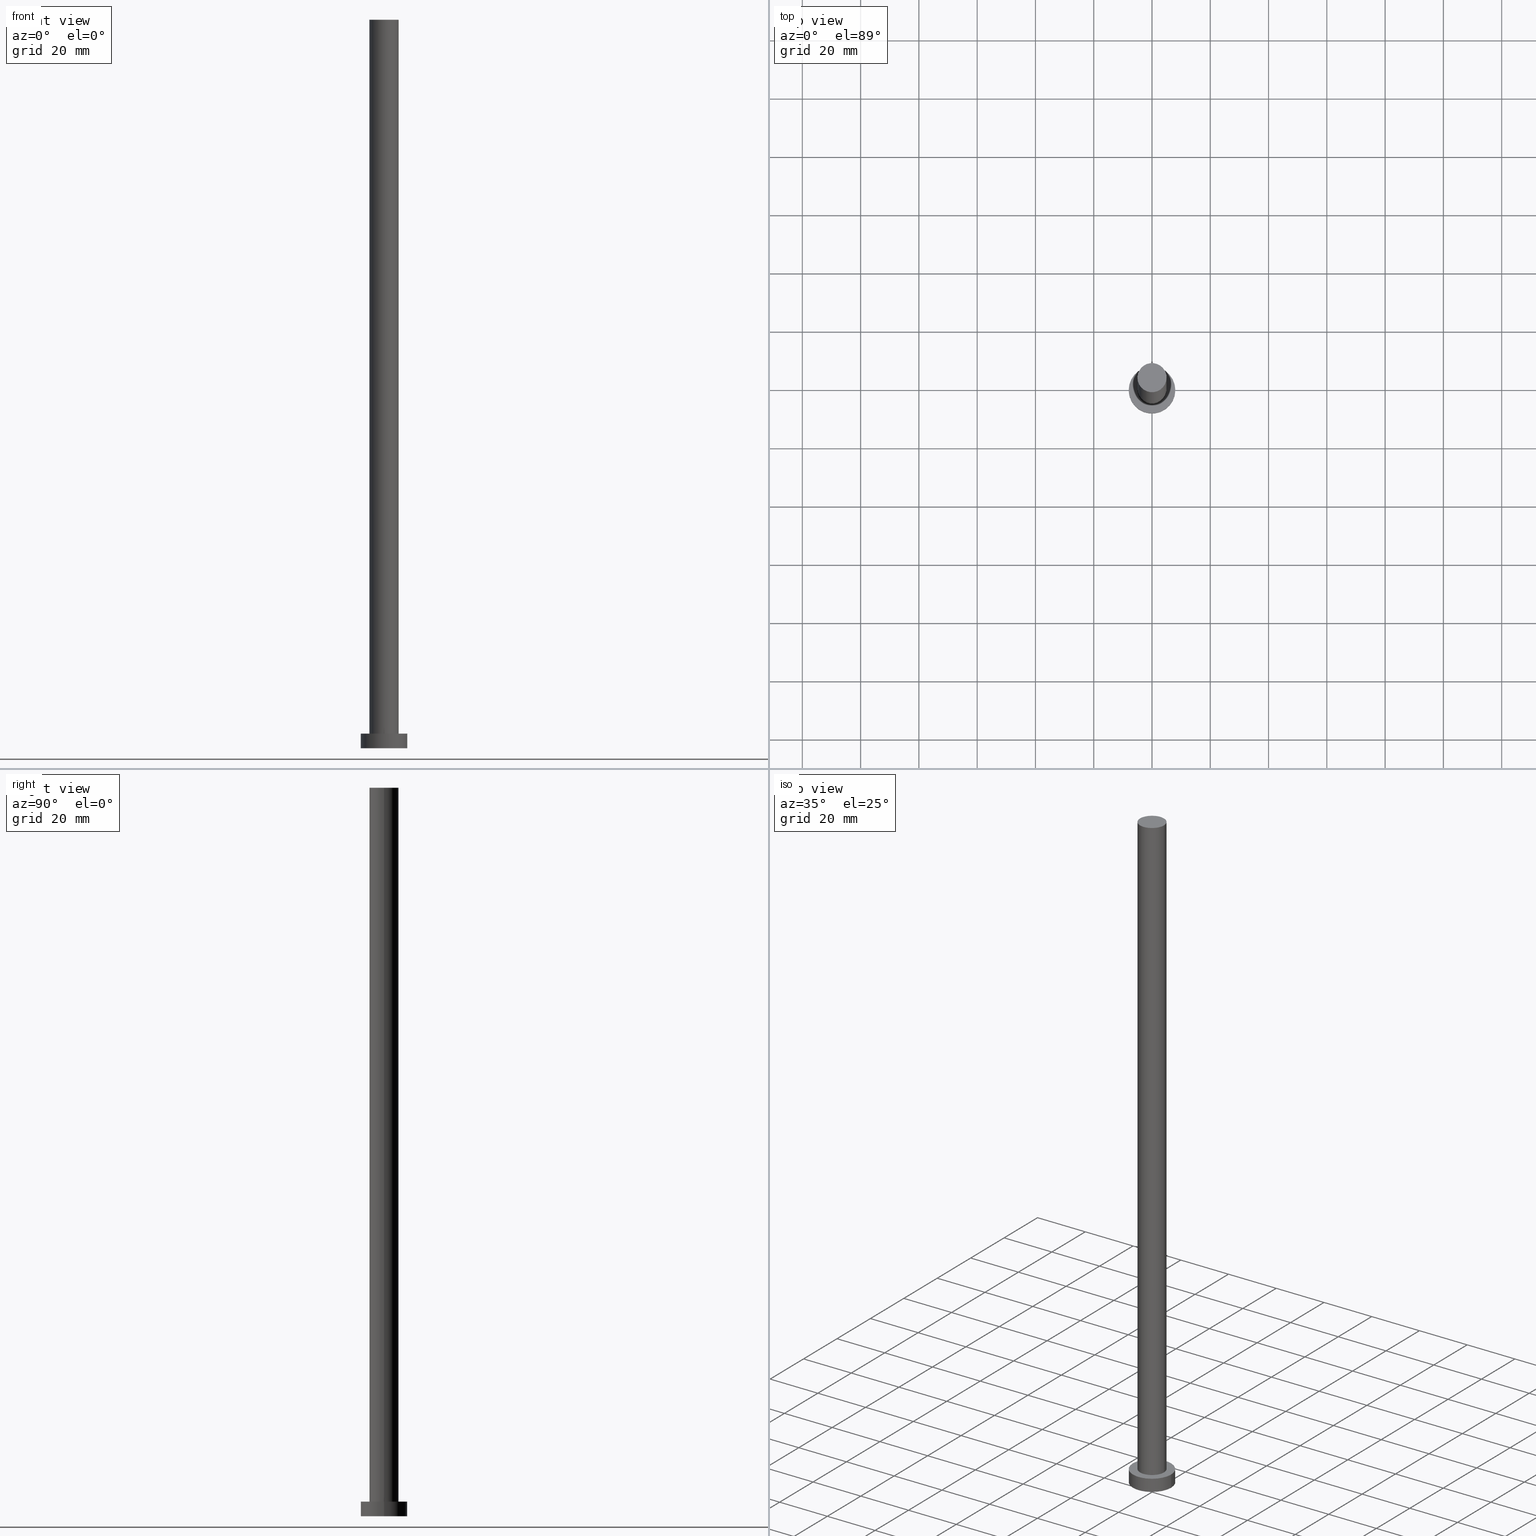
[diagram: canonical four-view strip — front | top / right | iso, engineering-drawing reading convention]
A machine part, canonical four-view strip (front | top / right | iso — engineering-drawing reading convention). The complete STEP part file that produces these views, byte-faithful:
ISO-10303-21;
HEADER;
FILE_DESCRIPTION (( 'STEP AP203' ),
    '1' );
FILE_NAME ('8d9d.STEP',
    '2023-02-13T13:49:41',
    ( '' ),
    ( '' ),
    'SwSTEP 2.0',
    'SolidWorks 2019',
    '' );
FILE_SCHEMA (( 'CONFIG_CONTROL_DESIGN' ));
ENDSEC;

DATA;
#1 = APPROVAL_DATE_TIME ( #140, #123 ) ;
#2 = EDGE_LOOP ( 'NONE', ( #66, #25 ) ) ;
#3 = CC_DESIGN_APPROVAL ( #123, ( #144 ) ) ;
#4 = CARTESIAN_POINT ( 'NONE',  ( 5.000000000000000000, 6.123233995736766282E-16, 5.000000000000000000 ) ) ;
#5 = ORIENTED_EDGE ( 'NONE', *, *, #90, .T. ) ;
#6 = EDGE_CURVE ( 'NONE', #241, #150, #65, .T. ) ;
#7 = VECTOR ( 'NONE', #29, 1000.000000000000000 ) ;
#8 = FACE_OUTER_BOUND ( 'NONE', #206, .T. ) ;
#9 = AXIS2_PLACEMENT_3D ( 'NONE', #173, #119, #99 ) ;
#10 = ORIENTED_EDGE ( 'NONE', *, *, #220, .F. ) ;
#11 = CARTESIAN_POINT ( 'NONE',  ( -8.000000000000000000, 0.000000000000000000, 0.000000000000000000 ) ) ;
#12 = FACE_OUTER_BOUND ( 'NONE', #208, .T. ) ;
#13 = EDGE_CURVE ( 'NONE', #150, #241, #103, .T. ) ;
#14 = CYLINDRICAL_SURFACE ( 'NONE', #197, 5.000000000000000000 ) ;
#15 = PERSON_AND_ORGANIZATION ( #145, #36 ) ;
#16 = LOCAL_TIME ( 14, 49, 41.00000000000000000, #251 ) ;
#17 = PERSON_AND_ORGANIZATION_ROLE ( 'creator' ) ;
#18 = PERSON_AND_ORGANIZATION ( #145, #36 ) ;
#19 = AXIS2_PLACEMENT_3D ( 'NONE', #240, #64, #62 ) ;
#20 = DATE_AND_TIME ( #102, #16 ) ;
#21 = APPROVAL_PERSON_ORGANIZATION ( #15, #123, #252 ) ;
#22 = PERSON_AND_ORGANIZATION ( #145, #36 ) ;
#23 = CC_DESIGN_PERSON_AND_ORGANIZATION_ASSIGNMENT ( #142, #202, ( #234 ) ) ;
#24 = EDGE_CURVE ( 'NONE', #210, #168, #211, .T. ) ;
#25 = ORIENTED_EDGE ( 'NONE', *, *, #243, .F. ) ;
#26 = MANIFOLD_SOLID_BREP ( 'P�idat vysunut�m3', #228 ) ;
#27 = CARTESIAN_POINT ( 'NONE',  ( 0.000000000000000000, 0.000000000000000000, 0.000000000000000000 ) ) ;
#28 = EDGE_LOOP ( 'NONE', ( #189, #244 ) ) ;
#29 = DIRECTION ( 'NONE',  ( -0.000000000000000000, -0.000000000000000000, -1.000000000000000000 ) ) ;
#30 = ORIENTED_EDGE ( 'NONE', *, *, #90, .F. ) ;
#31 = DIRECTION ( 'NONE',  ( 0.000000000000000000, 0.000000000000000000, 1.000000000000000000 ) ) ;
#32 = DIRECTION ( 'NONE',  ( 0.000000000000000000, 0.000000000000000000, 1.000000000000000000 ) ) ;
#33 = AXIS2_PLACEMENT_3D ( 'NONE', #50, #213, #174 ) ;
#34 =( NAMED_UNIT ( * ) PLANE_ANGLE_UNIT ( ) SI_UNIT ( $, .RADIAN. ) );
#35 = DIRECTION ( 'NONE',  ( 1.000000000000000000, 0.000000000000000000, -0.000000000000000000 ) ) ;
#36 = ORGANIZATION ( 'NEUR�EN�', 'NEUR�EN�', '' ) ;
#37 = COORDINATED_UNIVERSAL_TIME_OFFSET ( 1, 0, .AHEAD. ) ;
#38 = AXIS2_PLACEMENT_3D ( 'NONE', #126, #105, #124 ) ;
#39 = SECURITY_CLASSIFICATION_LEVEL ( 'unclassified' ) ;
#40 = AXIS2_PLACEMENT_3D ( 'NONE', #110, #89, #112 ) ;
#41 = VERTEX_POINT ( 'NONE', #4 ) ;
#42 = ORIENTED_EDGE ( 'NONE', *, *, #13, .T. ) ;
#43 = CARTESIAN_POINT ( 'NONE',  ( 0.000000000000000000, 0.000000000000000000, 0.000000000000000000 ) ) ;
#44 = CC_DESIGN_DATE_AND_TIME_ASSIGNMENT ( #178, #218, ( #116 ) ) ;
#45 = FACE_OUTER_BOUND ( 'NONE', #28, .T. ) ;
#46 = EDGE_CURVE ( 'NONE', #169, #242, #113, .T. ) ;
#47 = CARTESIAN_POINT ( 'NONE',  ( -8.000000000000000000, 0.000000000000000000, 5.000000000000000000 ) ) ;
#48 = AXIS2_PLACEMENT_3D ( 'NONE', #132, #245, #154 ) ;
#49 = ORIENTED_EDGE ( 'NONE', *, *, #85, .T. ) ;
#50 = CARTESIAN_POINT ( 'NONE',  ( 0.000000000000000000, 0.000000000000000000, 5.000000000000000000 ) ) ;
#51 = DIRECTION ( 'NONE',  ( -0.000000000000000000, -0.000000000000000000, -1.000000000000000000 ) ) ;
#52 = CARTESIAN_POINT ( 'NONE',  ( 8.000000000000000000, 9.797174393178825657E-16, 0.000000000000000000 ) ) ;
#53 = ADVANCED_FACE ( 'NONE', ( #45 ), #224, .F. ) ;
#54 = CC_DESIGN_PERSON_AND_ORGANIZATION_ASSIGNMENT ( #233, #57, ( #144 ) ) ;
#55 = AXIS2_PLACEMENT_3D ( 'NONE', #191, #247, #232 ) ;
#56 = FACE_OUTER_BOUND ( 'NONE', #223, .T. ) ;
#57 = PERSON_AND_ORGANIZATION_ROLE ( 'design_supplier' ) ;
#58 = APPROVAL_PERSON_ORGANIZATION ( #18, #171, #120 ) ;
#59 = CALENDAR_DATE ( 2023, 13, 2 ) ;
#60 = ORIENTED_EDGE ( 'NONE', *, *, #24, .T. ) ;
#61 = DATE_TIME_ROLE ( 'classification_date' ) ;
#62 = DIRECTION ( 'NONE',  ( 1.000000000000000000, 0.000000000000000000, 0.000000000000000000 ) ) ;
#63 = CC_DESIGN_PERSON_AND_ORGANIZATION_ASSIGNMENT ( #100, #17, ( #116 ) ) ;
#64 = DIRECTION ( 'NONE',  ( 0.000000000000000000, 0.000000000000000000, 1.000000000000000000 ) ) ;
#65 = CIRCLE ( 'NONE', #152, 8.000000000000000000 ) ;
#66 = ORIENTED_EDGE ( 'NONE', *, *, #180, .F. ) ;
#67 = CIRCLE ( 'NONE', #55, 5.000000000000000000 ) ;
#68 = CARTESIAN_POINT ( 'NONE',  ( 0.000000000000000000, 0.000000000000000000, 5.000000000000000000 ) ) ;
#69 = ORIENTED_EDGE ( 'NONE', *, *, #77, .T. ) ;
#70 = VECTOR ( 'NONE', #192, 1000.000000000000000 ) ;
#71 = CYLINDRICAL_SURFACE ( 'NONE', #33, 8.000000000000000000 ) ;
#72 = LOCAL_TIME ( 14, 49, 41.00000000000000000, #79 ) ;
#73 = CARTESIAN_POINT ( 'NONE',  ( 0.000000000000000000, 0.000000000000000000, 250.0000000000000000 ) ) ;
#74 = LINE ( 'NONE', #195, #70 ) ;
#75 = APPLICATION_PROTOCOL_DEFINITION ( 'international standard', 'config_control_design', 1994, #163 ) ;
#76 = VECTOR ( 'NONE', #146, 1000.000000000000000 ) ;
#77 = EDGE_CURVE ( 'NONE', #168, #210, #165, .T. ) ;
#78 = CARTESIAN_POINT ( 'NONE',  ( -5.000000000000000000, 0.000000000000000000, 250.0000000000000000 ) ) ;
#79 = COORDINATED_UNIVERSAL_TIME_OFFSET ( 1, 0, .AHEAD. ) ;
#80 = PERSON_AND_ORGANIZATION ( #145, #36 ) ;
#81 = ORIENTED_EDGE ( 'NONE', *, *, #6, .F. ) ;
#82 = PERSON_AND_ORGANIZATION_ROLE ( 'creator' ) ;
#83 = CC_DESIGN_DATE_AND_TIME_ASSIGNMENT ( #162, #61, ( #234 ) ) ;
#84 = CALENDAR_DATE ( 2023, 13, 2 ) ;
#85 = EDGE_CURVE ( 'NONE', #241, #210, #239, .T. ) ;
#86 = CC_DESIGN_APPROVAL ( #171, ( #116 ) ) ;
#87 = DIRECTION ( 'NONE',  ( 1.000000000000000000, 0.000000000000000000, 0.000000000000000000 ) ) ;
#88 = DIRECTION ( 'NONE',  ( 0.000000000000000000, 0.000000000000000000, 1.000000000000000000 ) ) ;
#89 = DIRECTION ( 'NONE',  ( 0.000000000000000000, 0.000000000000000000, 1.000000000000000000 ) ) ;
#90 = EDGE_CURVE ( 'NONE', #150, #168, #107, .T. ) ;
#91 = CYLINDRICAL_SURFACE ( 'NONE', #48, 5.000000000000000000 ) ;
#92 = AXIS2_PLACEMENT_3D ( 'NONE', #172, #32, #134 ) ;
#93 = ORIENTED_EDGE ( 'NONE', *, *, #180, .T. ) ;
#94 = CARTESIAN_POINT ( 'NONE',  ( 0.000000000000000000, 0.000000000000000000, 250.0000000000000000 ) ) ;
#95 = CC_DESIGN_PERSON_AND_ORGANIZATION_ASSIGNMENT ( #22, #217, ( #101 ) ) ;
#96 = DIRECTION ( 'NONE',  ( -1.000000000000000000, 0.000000000000000000, 0.000000000000000000 ) ) ;
#97 = FACE_OUTER_BOUND ( 'NONE', #127, .T. ) ;
#98 = DIRECTION ( 'NONE',  ( 1.000000000000000000, 0.000000000000000000, 0.000000000000000000 ) ) ;
#99 = DIRECTION ( 'NONE',  ( 1.000000000000000000, 0.000000000000000000, 0.000000000000000000 ) ) ;
#100 = PERSON_AND_ORGANIZATION ( #145, #36 ) ;
#101 = PRODUCT ( '8d9d', '8d9d', '', ( #254 ) ) ;
#102 = CALENDAR_DATE ( 2023, 13, 2 ) ;
#103 = CIRCLE ( 'NONE', #19, 8.000000000000000000 ) ;
#104 = CC_DESIGN_PERSON_AND_ORGANIZATION_ASSIGNMENT ( #80, #82, ( #144 ) ) ;
#105 = DIRECTION ( 'NONE',  ( 0.000000000000000000, 0.000000000000000000, 1.000000000000000000 ) ) ;
#106 = APPROVAL_DATE_TIME ( #20, #171 ) ;
#107 = LINE ( 'NONE', #47, #76 ) ;
#108 = CIRCLE ( 'NONE', #205, 5.000000000000000000 ) ;
#109 = CIRCLE ( 'NONE', #215, 5.000000000000000000 ) ;
#110 = CARTESIAN_POINT ( 'NONE',  ( 0.000000000000000000, 0.000000000000000000, 0.000000000000000000 ) ) ;
#111 = EDGE_LOOP ( 'NONE', ( #151, #167 ) ) ;
#112 = DIRECTION ( 'NONE',  ( 1.000000000000000000, 0.000000000000000000, -0.000000000000000000 ) ) ;
#113 = LINE ( 'NONE', #147, #7 ) ;
#114 = APPROVAL ( #237, 'NEUR�EN�' ) ;
#115 = DIRECTION ( 'NONE',  ( 1.000000000000000000, 0.000000000000000000, 0.000000000000000000 ) ) ;
#116 = PRODUCT_DEFINITION ( 'NEZN�M�', '', #144, #236 ) ;
#117 =( NAMED_UNIT ( * ) SI_UNIT ( $, .STERADIAN. ) SOLID_ANGLE_UNIT ( ) );
#118 = DIRECTION ( 'NONE',  ( -1.000000000000000000, 0.000000000000000000, 0.000000000000000000 ) ) ;
#119 = DIRECTION ( 'NONE',  ( 0.000000000000000000, 0.000000000000000000, 1.000000000000000000 ) ) ;
#120 = APPROVAL_ROLE ( '' ) ;
#121 =( GEOMETRIC_REPRESENTATION_CONTEXT ( 3 ) GLOBAL_UNCERTAINTY_ASSIGNED_CONTEXT ( ( #200 ) ) GLOBAL_UNIT_ASSIGNED_CONTEXT ( ( #214, #34, #117 ) ) REPRESENTATION_CONTEXT ( 'NONE', 'WORKASPACE' ) );
#122 = PERSON_AND_ORGANIZATION ( #145, #36 ) ;
#123 = APPROVAL ( #160, 'NEUR�EN�' ) ;
#124 = DIRECTION ( 'NONE',  ( 1.000000000000000000, 0.000000000000000000, 0.000000000000000000 ) ) ;
#125 = AXIS2_PLACEMENT_3D ( 'NONE', #27, #225, #87 ) ;
#126 = CARTESIAN_POINT ( 'NONE',  ( 0.000000000000000000, 0.000000000000000000, 0.000000000000000000 ) ) ;
#127 = EDGE_LOOP ( 'NONE', ( #187, #207, #5, #69 ) ) ;
#128 = ORIENTED_EDGE ( 'NONE', *, *, #158, .F. ) ;
#129 = ORIENTED_EDGE ( 'NONE', *, *, #158, .T. ) ;
#130 = VERTEX_POINT ( 'NONE', #185 ) ;
#131 = ADVANCED_FACE ( 'NONE', ( #8 ), #91, .T. ) ;
#132 = CARTESIAN_POINT ( 'NONE',  ( 0.000000000000000000, 0.000000000000000000, 250.0000000000000000 ) ) ;
#133 = DIRECTION ( 'NONE',  ( 1.000000000000000000, 0.000000000000000000, 0.000000000000000000 ) ) ;
#134 = DIRECTION ( 'NONE',  ( 1.000000000000000000, 0.000000000000000000, -0.000000000000000000 ) ) ;
#135 = CARTESIAN_POINT ( 'NONE',  ( -5.000000000000000000, 0.000000000000000000, 5.000000000000000000 ) ) ;
#136 = CC_DESIGN_SECURITY_CLASSIFICATION ( #234, ( #144 ) ) ;
#137 = PRODUCT_RELATED_PRODUCT_CATEGORY ( 'detail', '', ( #101 ) ) ;
#138 = FACE_OUTER_BOUND ( 'NONE', #111, .T. ) ;
#139 = COORDINATED_UNIVERSAL_TIME_OFFSET ( 1, 0, .AHEAD. ) ;
#140 = DATE_AND_TIME ( #59, #72 ) ;
#141 = ORIENTED_EDGE ( 'NONE', *, *, #46, .F. ) ;
#142 = PERSON_AND_ORGANIZATION ( #145, #36 ) ;
#143 = APPROVAL_ROLE ( '' ) ;
#144 = PRODUCT_DEFINITION_FORMATION_WITH_SPECIFIED_SOURCE ( 'LIBOVOLN�', '', #101, .NOT_KNOWN. ) ;
#145 = PERSON ( 'NEUR�EN�', 'NEUR�EN�', 'NEUR�EN�', ('NEUR�EN�'), ('NEUR�EN�'), ('NEUR�EN�') ) ;
#146 = DIRECTION ( 'NONE',  ( -0.000000000000000000, -0.000000000000000000, -1.000000000000000000 ) ) ;
#147 = CARTESIAN_POINT ( 'NONE',  ( -5.000000000000000000, 0.000000000000000000, 250.0000000000000000 ) ) ;
#148 = LOCAL_TIME ( 14, 49, 41.00000000000000000, #221 ) ;
#149 = DIRECTION ( 'NONE',  ( 1.000000000000000000, 0.000000000000000000, 0.000000000000000000 ) ) ;
#150 = VERTEX_POINT ( 'NONE', #249 ) ;
#151 = ORIENTED_EDGE ( 'NONE', *, *, #175, .T. ) ;
#152 = AXIS2_PLACEMENT_3D ( 'NONE', #68, #88, #149 ) ;
#153 = ADVANCED_BREP_SHAPE_REPRESENTATION ( '8d9d', ( #26, #38 ), #121 ) ;
#154 = DIRECTION ( 'NONE',  ( -1.000000000000000000, 0.000000000000000000, 0.000000000000000000 ) ) ;
#155 = DIRECTION ( 'NONE',  ( 0.000000000000000000, 0.000000000000000000, 1.000000000000000000 ) ) ;
#156 = PLANE ( 'NONE',  #238 ) ;
#157 = CYLINDRICAL_SURFACE ( 'NONE', #164, 8.000000000000000000 ) ;
#158 = EDGE_CURVE ( 'NONE', #130, #41, #74, .T. ) ;
#159 = ADVANCED_FACE ( 'NONE', ( #176 ), #157, .T. ) ;
#160 = APPROVAL_STATUS ( 'not_yet_approved' ) ;
#161 = CALENDAR_DATE ( 2023, 13, 2 ) ;
#162 = DATE_AND_TIME ( #84, #219 ) ;
#163 = APPLICATION_CONTEXT ( 'configuration controlled 3d designs of mechanical parts and assemblies' ) ;
#164 = AXIS2_PLACEMENT_3D ( 'NONE', #212, #51, #118 ) ;
#165 = CIRCLE ( 'NONE', #196, 8.000000000000000000 ) ;
#166 = ORIENTED_EDGE ( 'NONE', *, *, #6, .T. ) ;
#167 = ORIENTED_EDGE ( 'NONE', *, *, #220, .T. ) ;
#168 = VERTEX_POINT ( 'NONE', #11 ) ;
#169 = VERTEX_POINT ( 'NONE', #78 ) ;
#170 = ORIENTED_EDGE ( 'NONE', *, *, #175, .F. ) ;
#171 = APPROVAL ( #179, 'NEUR�EN�' ) ;
#172 = CARTESIAN_POINT ( 'NONE',  ( 0.000000000000000000, 0.000000000000000000, 5.000000000000000000 ) ) ;
#173 = CARTESIAN_POINT ( 'NONE',  ( 0.000000000000000000, 0.000000000000000000, 5.000000000000000000 ) ) ;
#174 = DIRECTION ( 'NONE',  ( -1.000000000000000000, 0.000000000000000000, 0.000000000000000000 ) ) ;
#175 = EDGE_CURVE ( 'NONE', #169, #130, #108, .T. ) ;
#176 = FACE_OUTER_BOUND ( 'NONE', #201, .T. ) ;
#177 = CALENDAR_DATE ( 2023, 13, 2 ) ;
#178 = DATE_AND_TIME ( #177, #184 ) ;
#179 = APPROVAL_STATUS ( 'not_yet_approved' ) ;
#180 = EDGE_CURVE ( 'NONE', #242, #41, #109, .T. ) ;
#181 = APPLICATION_PROTOCOL_DEFINITION ( 'international standard', 'config_control_design', 1994, #199 ) ;
#182 = APPROVAL_DATE_TIME ( #235, #114 ) ;
#183 = ORIENTED_EDGE ( 'NONE', *, *, #243, .T. ) ;
#184 = LOCAL_TIME ( 14, 49, 41.00000000000000000, #37 ) ;
#185 = CARTESIAN_POINT ( 'NONE',  ( 5.000000000000000000, 6.123233995736766282E-16, 250.0000000000000000 ) ) ;
#186 = CARTESIAN_POINT ( 'NONE',  ( 8.000000000000000000, 9.797174393178825657E-16, 5.000000000000000000 ) ) ;
#187 = ORIENTED_EDGE ( 'NONE', *, *, #85, .F. ) ;
#188 = VECTOR ( 'NONE', #226, 1000.000000000000000 ) ;
#189 = ORIENTED_EDGE ( 'NONE', *, *, #77, .F. ) ;
#190 = CARTESIAN_POINT ( 'NONE',  ( 8.000000000000000000, 9.797174393178825657E-16, 5.000000000000000000 ) ) ;
#191 = CARTESIAN_POINT ( 'NONE',  ( 0.000000000000000000, 0.000000000000000000, 250.0000000000000000 ) ) ;
#192 = DIRECTION ( 'NONE',  ( -0.000000000000000000, -0.000000000000000000, -1.000000000000000000 ) ) ;
#193 = ADVANCED_FACE ( 'NONE', ( #231, #12 ), #230, .T. ) ;
#194 = ADVANCED_FACE ( 'NONE', ( #56 ), #14, .T. ) ;
#195 = CARTESIAN_POINT ( 'NONE',  ( 5.000000000000000000, 6.123233995736766282E-16, 250.0000000000000000 ) ) ;
#196 = AXIS2_PLACEMENT_3D ( 'NONE', #43, #227, #133 ) ;
#197 = AXIS2_PLACEMENT_3D ( 'NONE', #73, #216, #96 ) ;
#198 = SHAPE_DEFINITION_REPRESENTATION ( #253, #153 ) ;
#199 = APPLICATION_CONTEXT ( 'configuration controlled 3d designs of mechanical parts and assemblies' ) ;
#200 = UNCERTAINTY_MEASURE_WITH_UNIT (LENGTH_MEASURE( 1.000000000000000082E-05 ), #214, 'distance_accuracy_value', 'NONE');
#201 = EDGE_LOOP ( 'NONE', ( #81, #49, #60, #30 ) ) ;
#202 = PERSON_AND_ORGANIZATION_ROLE ( 'classification_officer' ) ;
#203 = APPROVAL_PERSON_ORGANIZATION ( #122, #114, #143 ) ;
#204 = ADVANCED_FACE ( 'NONE', ( #97 ), #71, .T. ) ;
#205 = AXIS2_PLACEMENT_3D ( 'NONE', #248, #155, #98 ) ;
#206 = EDGE_LOOP ( 'NONE', ( #10, #129, #183, #141 ) ) ;
#207 = ORIENTED_EDGE ( 'NONE', *, *, #13, .F. ) ;
#208 = EDGE_LOOP ( 'NONE', ( #42, #166 ) ) ;
#209 = ADVANCED_FACE ( 'NONE', ( #138 ), #156, .T. ) ;
#210 = VERTEX_POINT ( 'NONE', #52 ) ;
#211 = CIRCLE ( 'NONE', #125, 8.000000000000000000 ) ;
#212 = CARTESIAN_POINT ( 'NONE',  ( 0.000000000000000000, 0.000000000000000000, 5.000000000000000000 ) ) ;
#213 = DIRECTION ( 'NONE',  ( -0.000000000000000000, -0.000000000000000000, -1.000000000000000000 ) ) ;
#214 =( LENGTH_UNIT ( ) NAMED_UNIT ( * ) SI_UNIT ( .MILLI., .METRE. ) );
#215 = AXIS2_PLACEMENT_3D ( 'NONE', #250, #229, #115 ) ;
#216 = DIRECTION ( 'NONE',  ( -0.000000000000000000, -0.000000000000000000, -1.000000000000000000 ) ) ;
#217 = PERSON_AND_ORGANIZATION_ROLE ( 'design_owner' ) ;
#218 = DATE_TIME_ROLE ( 'creation_date' ) ;
#219 = LOCAL_TIME ( 14, 49, 41.00000000000000000, #139 ) ;
#220 = EDGE_CURVE ( 'NONE', #130, #169, #67, .T. ) ;
#221 = COORDINATED_UNIVERSAL_TIME_OFFSET ( 1, 0, .AHEAD. ) ;
#222 = ORIENTED_EDGE ( 'NONE', *, *, #46, .T. ) ;
#223 = EDGE_LOOP ( 'NONE', ( #128, #170, #222, #93 ) ) ;
#224 = PLANE ( 'NONE',  #40 ) ;
#225 = DIRECTION ( 'NONE',  ( 0.000000000000000000, 0.000000000000000000, 1.000000000000000000 ) ) ;
#226 = DIRECTION ( 'NONE',  ( -0.000000000000000000, -0.000000000000000000, -1.000000000000000000 ) ) ;
#227 = DIRECTION ( 'NONE',  ( 0.000000000000000000, 0.000000000000000000, 1.000000000000000000 ) ) ;
#228 = CLOSED_SHELL ( 'NONE', ( #131, #159, #204, #193, #53, #194, #209 ) ) ;
#229 = DIRECTION ( 'NONE',  ( 0.000000000000000000, 0.000000000000000000, 1.000000000000000000 ) ) ;
#230 = PLANE ( 'NONE',  #92 ) ;
#231 = FACE_BOUND ( 'NONE', #2, .T. ) ;
#232 = DIRECTION ( 'NONE',  ( 1.000000000000000000, 0.000000000000000000, 0.000000000000000000 ) ) ;
#233 = PERSON_AND_ORGANIZATION ( #145, #36 ) ;
#234 = SECURITY_CLASSIFICATION ( '', '', #39 ) ;
#235 = DATE_AND_TIME ( #161, #148 ) ;
#236 = DESIGN_CONTEXT ( 'detailed design', #199, 'design' ) ;
#237 = APPROVAL_STATUS ( 'not_yet_approved' ) ;
#238 = AXIS2_PLACEMENT_3D ( 'NONE', #94, #31, #35 ) ;
#239 = LINE ( 'NONE', #186, #188 ) ;
#240 = CARTESIAN_POINT ( 'NONE',  ( 0.000000000000000000, 0.000000000000000000, 5.000000000000000000 ) ) ;
#241 = VERTEX_POINT ( 'NONE', #190 ) ;
#242 = VERTEX_POINT ( 'NONE', #135 ) ;
#243 = EDGE_CURVE ( 'NONE', #41, #242, #246, .T. ) ;
#244 = ORIENTED_EDGE ( 'NONE', *, *, #24, .F. ) ;
#245 = DIRECTION ( 'NONE',  ( -0.000000000000000000, -0.000000000000000000, -1.000000000000000000 ) ) ;
#246 = CIRCLE ( 'NONE', #9, 5.000000000000000000 ) ;
#247 = DIRECTION ( 'NONE',  ( 0.000000000000000000, 0.000000000000000000, 1.000000000000000000 ) ) ;
#248 = CARTESIAN_POINT ( 'NONE',  ( 0.000000000000000000, 0.000000000000000000, 250.0000000000000000 ) ) ;
#249 = CARTESIAN_POINT ( 'NONE',  ( -8.000000000000000000, 0.000000000000000000, 5.000000000000000000 ) ) ;
#250 = CARTESIAN_POINT ( 'NONE',  ( 0.000000000000000000, 0.000000000000000000, 5.000000000000000000 ) ) ;
#251 = COORDINATED_UNIVERSAL_TIME_OFFSET ( 1, 0, .AHEAD. ) ;
#252 = APPROVAL_ROLE ( '' ) ;
#253 = PRODUCT_DEFINITION_SHAPE ( 'NONE', 'NONE',  #116 ) ;
#254 = MECHANICAL_CONTEXT ( 'NONE', #163, 'mechanical' ) ;
#255 = CC_DESIGN_APPROVAL ( #114, ( #234 ) ) ;
ENDSEC;
END-ISO-10303-21;
